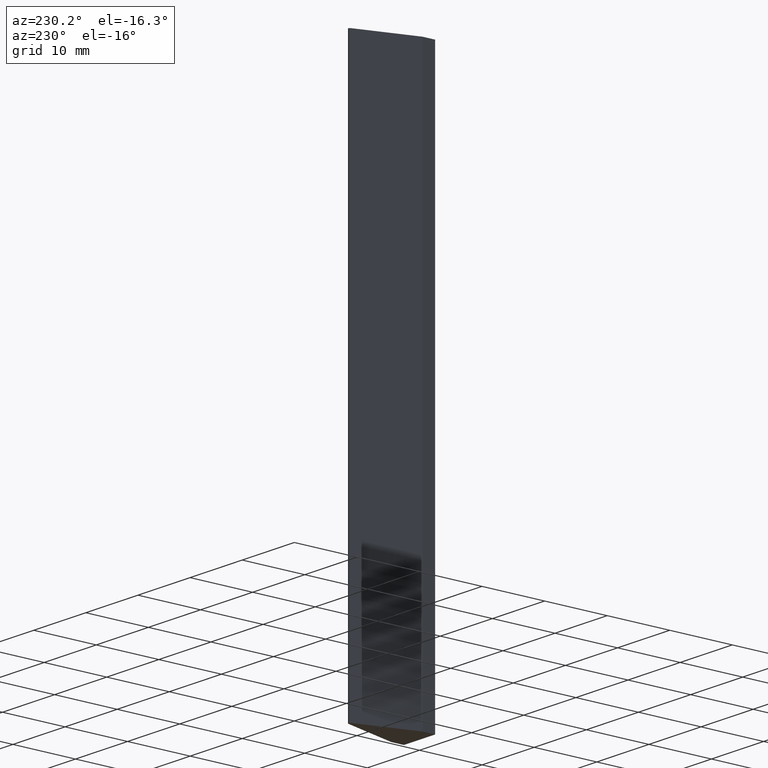
[diagram: clean part render]
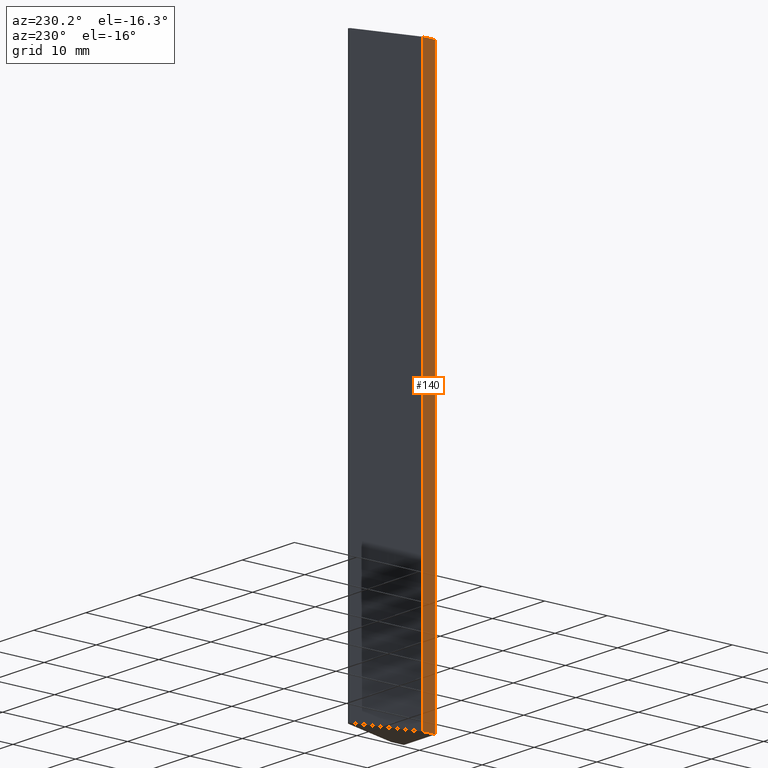
[diagram: same view with one face highlighted and labeled with its STEP entity id]
A machine part, auxiliary view. The second image highlights one B-rep face of the part: STEP entity #140.
In plain terms, the highlighted planar face has unit normal (-1, -0, 0).
Its self-contained STEP definition (entity closure, byte-faithful):
#17=FACE_OUTER_BOUND('',#25,.T.);
#25=EDGE_LOOP('',(#102,#103,#104,#105));
#35=LINE('',#224,#51);
#39=LINE('',#234,#55);
#40=LINE('',#236,#56);
#41=LINE('',#237,#57);
#51=VECTOR('',#185,10.);
#55=VECTOR('',#193,10.);
#56=VECTOR('',#194,10.);
#57=VECTOR('',#195,10.);
#67=VERTEX_POINT('',#221);
#68=VERTEX_POINT('',#223);
#72=VERTEX_POINT('',#233);
#73=VERTEX_POINT('',#235);
#79=EDGE_CURVE('',#67,#68,#35,.T.);
#84=EDGE_CURVE('',#72,#67,#39,.T.);
#85=EDGE_CURVE('',#73,#72,#40,.T.);
#86=EDGE_CURVE('',#68,#73,#41,.T.);
#102=ORIENTED_EDGE('',*,*,#84,.F.);
#103=ORIENTED_EDGE('',*,*,#85,.F.);
#104=ORIENTED_EDGE('',*,*,#86,.F.);
#105=ORIENTED_EDGE('',*,*,#79,.F.);
#133=PLANE('',#172);
#140=ADVANCED_FACE('',(#17),#133,.T.);
#172=AXIS2_PLACEMENT_3D('',#232,#191,#192);
#185=DIRECTION('',(-6.62819716194126E-15,1.,0.));
#191=DIRECTION('center_axis',(-1.,-6.62819716194126E-15,0.));
#192=DIRECTION('ref_axis',(6.62819716194126E-15,-1.,0.));
#193=DIRECTION('',(0.,0.,-1.));
#194=DIRECTION('',(6.62819716194126E-15,-1.,0.));
#195=DIRECTION('',(0.,0.,1.));
#221=CARTESIAN_POINT('',(-2.99999999999999,-3.88578058618805E-15,-44.45));
#223=CARTESIAN_POINT('',(-3.,2.00999999999999,-44.45));
#224=CARTESIAN_POINT('',(-3.,2.00999999999999,-44.45));
#232=CARTESIAN_POINT('Origin',(-3.,2.00999999999999,0.));
#233=CARTESIAN_POINT('',(-2.99999999999999,-3.88578058618805E-15,44.45));
#234=CARTESIAN_POINT('',(-2.99999999999999,-3.88578058618805E-15,0.));
#235=CARTESIAN_POINT('',(-3.,2.00999999999999,44.45));
#236=CARTESIAN_POINT('',(-3.,2.00999999999999,44.45));
#237=CARTESIAN_POINT('',(-3.,2.00999999999999,0.));